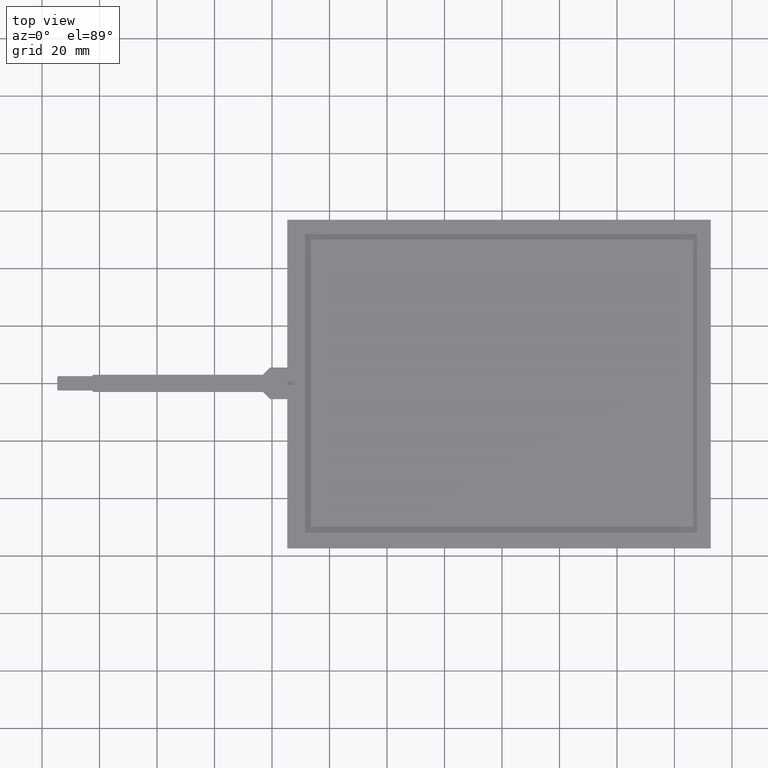
[diagram: clean part render]
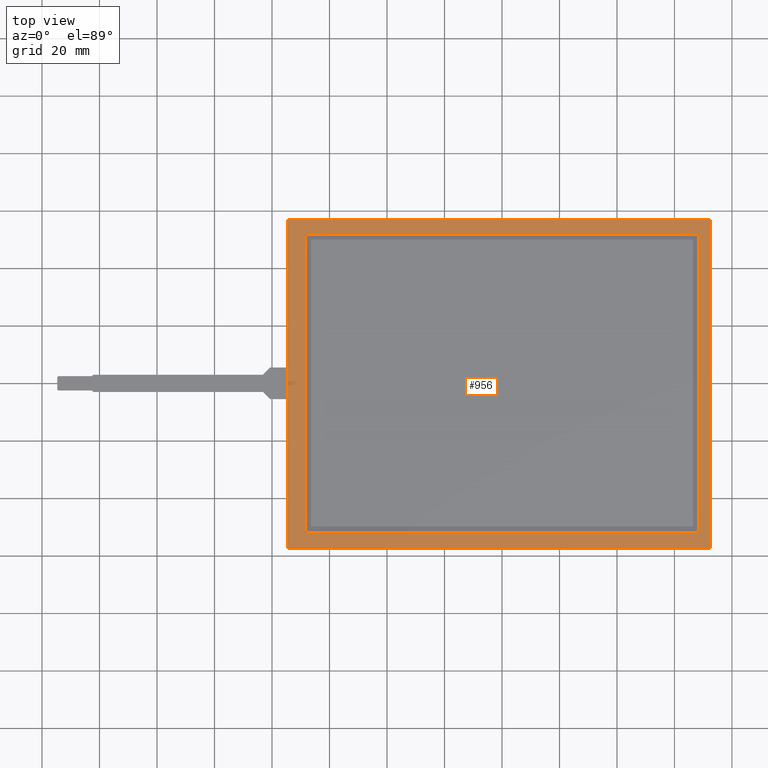
[diagram: same view with one face highlighted and labeled with its STEP entity id]
A machine part, top view. The second image highlights one B-rep face of the part: STEP entity #956.
In plain terms, the highlighted planar face has unit normal (0, 0, 1).
Its self-contained STEP definition (entity closure, byte-faithful):
#36=FACE_BOUND('',#100,.T.);
#46=FACE_OUTER_BOUND('',#99,.T.);
#99=EDGE_LOOP('',(#665,#666,#667,#668));
#100=EDGE_LOOP('',(#669,#670,#671,#672));
#155=LINE('',#1368,#281);
#159=LINE('',#1376,#285);
#162=LINE('',#1382,#288);
#165=LINE('',#1387,#291);
#167=LINE('',#1393,#293);
#168=LINE('',#1395,#294);
#169=LINE('',#1397,#295);
#170=LINE('',#1398,#296);
#281=VECTOR('',#1108,10.);
#285=VECTOR('',#1114,10.);
#288=VECTOR('',#1119,10.);
#291=VECTOR('',#1124,10.);
#293=VECTOR('',#1130,10.);
#294=VECTOR('',#1131,10.);
#295=VECTOR('',#1132,10.);
#296=VECTOR('',#1133,10.);
#403=VERTEX_POINT('',#1366);
#404=VERTEX_POINT('',#1367);
#407=VERTEX_POINT('',#1375);
#409=VERTEX_POINT('',#1381);
#411=VERTEX_POINT('',#1391);
#412=VERTEX_POINT('',#1392);
#413=VERTEX_POINT('',#1394);
#414=VERTEX_POINT('',#1396);
#499=EDGE_CURVE('',#403,#404,#155,.T.);
#503=EDGE_CURVE('',#407,#403,#159,.T.);
#506=EDGE_CURVE('',#409,#407,#162,.T.);
#509=EDGE_CURVE('',#404,#409,#165,.T.);
#511=EDGE_CURVE('',#411,#412,#167,.T.);
#512=EDGE_CURVE('',#412,#413,#168,.T.);
#513=EDGE_CURVE('',#413,#414,#169,.T.);
#514=EDGE_CURVE('',#414,#411,#170,.T.);
#665=ORIENTED_EDGE('',*,*,#511,.T.);
#666=ORIENTED_EDGE('',*,*,#512,.T.);
#667=ORIENTED_EDGE('',*,*,#513,.T.);
#668=ORIENTED_EDGE('',*,*,#514,.T.);
#669=ORIENTED_EDGE('',*,*,#499,.T.);
#670=ORIENTED_EDGE('',*,*,#509,.T.);
#671=ORIENTED_EDGE('',*,*,#506,.T.);
#672=ORIENTED_EDGE('',*,*,#503,.T.);
#910=PLANE('',#1029);
#956=ADVANCED_FACE('',(#46,#36),#910,.T.);
#1029=AXIS2_PLACEMENT_3D('',#1390,#1128,#1129);
#1108=DIRECTION('',(-3.4206756006167E-16,1.,0.));
#1114=DIRECTION('',(-1.,-6.48400072784439E-17,0.));
#1119=DIRECTION('',(0.,-1.,0.));
#1124=DIRECTION('',(1.,0.,0.));
#1128=DIRECTION('center_axis',(0.,0.,1.));
#1129=DIRECTION('ref_axis',(1.,0.,0.));
#1130=DIRECTION('',(-1.,0.,0.));
#1131=DIRECTION('',(2.3311769545935E-16,-1.,0.));
#1132=DIRECTION('',(1.,1.80891735173142E-16,0.));
#1133=DIRECTION('',(0.,1.,0.));
#1366=CARTESIAN_POINT('',(-68.49,-51.93,0.));
#1367=CARTESIAN_POINT('',(-68.49,51.93,0.));
#1368=CARTESIAN_POINT('',(-68.49,-26.075,0.));
#1375=CARTESIAN_POINT('',(68.49,-51.93,0.));
#1376=CARTESIAN_POINT('',(33.725,-51.93,0.));
#1381=CARTESIAN_POINT('',(68.49,51.93,0.));
#1382=CARTESIAN_POINT('',(68.49,25.855,0.));
#1387=CARTESIAN_POINT('',(-34.765,51.93,0.));
#1390=CARTESIAN_POINT('Origin',(-1.04,-0.220000000000007,0.));
#1391=CARTESIAN_POINT('',(72.61,56.93,0.));
#1392=CARTESIAN_POINT('',(-74.69,56.93,0.));
#1393=CARTESIAN_POINT('',(72.61,56.93,0.));
#1394=CARTESIAN_POINT('',(-74.69,-57.37,0.));
#1395=CARTESIAN_POINT('',(-74.69,56.93,0.));
#1396=CARTESIAN_POINT('',(72.61,-57.37,0.));
#1397=CARTESIAN_POINT('',(-74.69,-57.37,0.));
#1398=CARTESIAN_POINT('',(72.61,-57.37,0.));